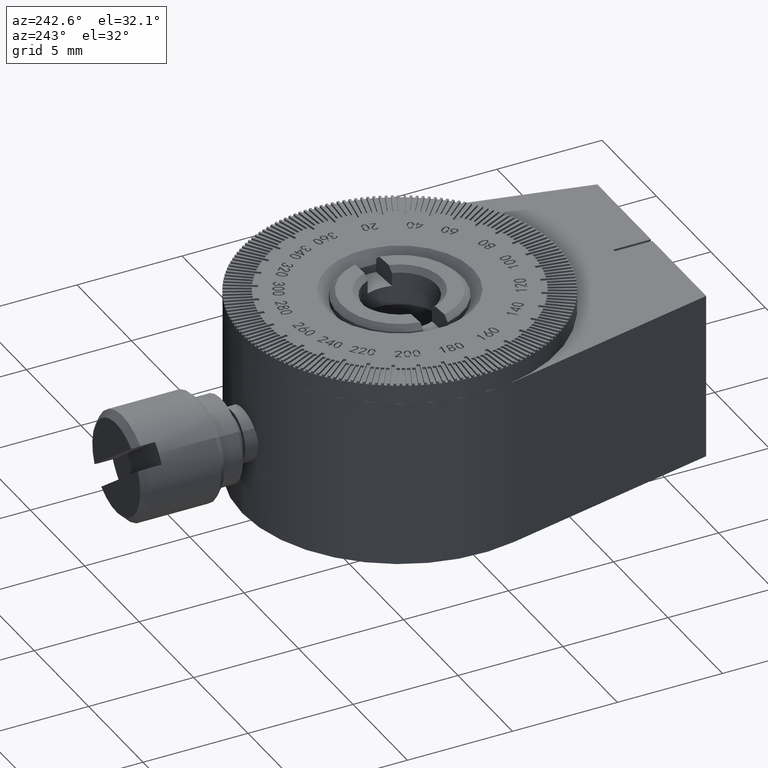
[diagram: clean part render]
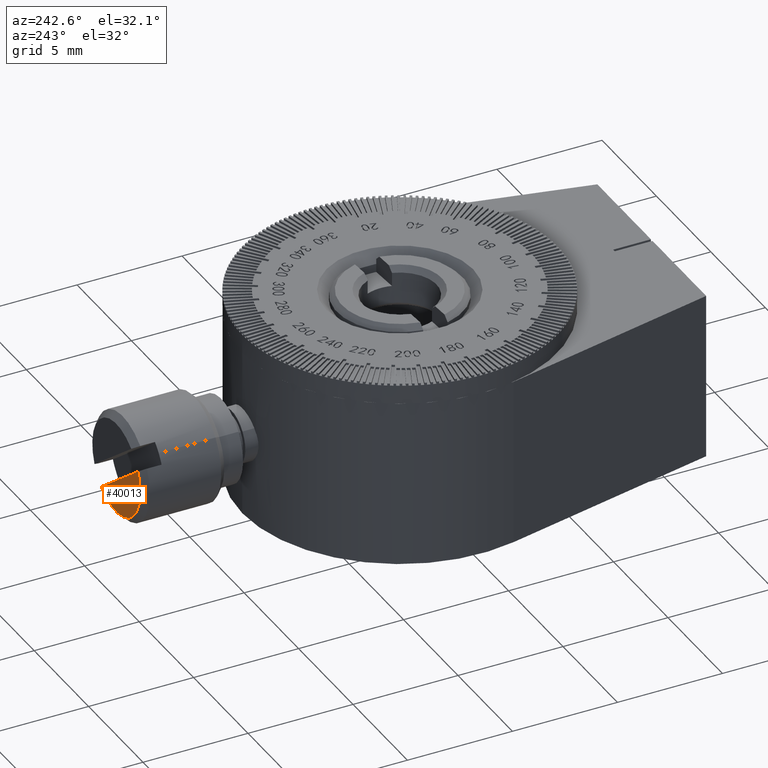
[diagram: same view with one face highlighted and labeled with its STEP entity id]
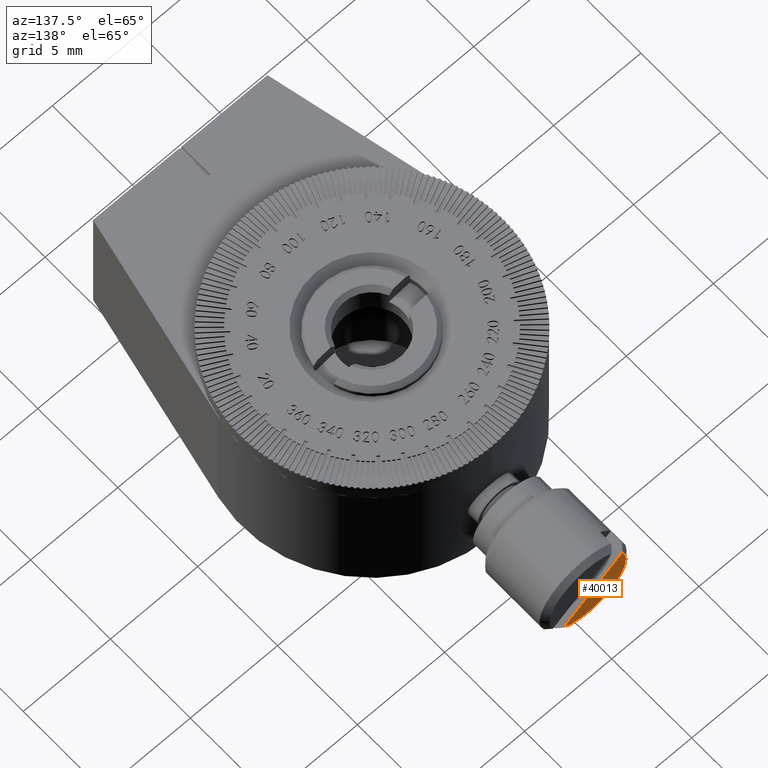
[diagram: same view with one face highlighted and labeled with its STEP entity id]
A machine part, auxiliary view. The second image highlights one B-rep face of the part: STEP entity #40013.
A second angle (auxiliary view) of the same face is appended — the face is thin or edge-on in the first view.
In plain terms, the highlighted planar face has unit normal (0, 1, 0).
Its self-contained STEP definition (entity closure, byte-faithful):
#1792 = CARTESIAN_POINT ( 'NONE',  ( 0.000000000000000000, 5.000000000000000000, 0.000000000000000000 ) ) ;
#2374 = CARTESIAN_POINT ( 'NONE',  ( 0.5000000000000000000, 5.000000000000000000, -2.142428528562853263 ) ) ;
#10458 = VECTOR ( 'NONE', #61107, 1000.000000000000000 ) ;
#10461 = FACE_OUTER_BOUND ( 'NONE', #55239, .T. ) ;
#12777 = CIRCLE ( 'NONE', #48634, 2.199999999999998845 ) ;
#19778 = LINE ( 'NONE', #41829, #10458 ) ;
#21750 = VERTEX_POINT ( 'NONE', #2374 ) ;
#26201 = EDGE_CURVE ( 'NONE', #43378, #21750, #12777, .T. ) ;
#30037 = CARTESIAN_POINT ( 'NONE',  ( 0.000000000000000000, 5.000000000000000000, 0.000000000000000000 ) ) ;
#30978 = EDGE_CURVE ( 'NONE', #43378, #21750, #19778, .T. ) ;
#32528 = AXIS2_PLACEMENT_3D ( 'NONE', #30037, #44769, #39948 ) ;
#34209 = PLANE ( 'NONE',  #32528 ) ;
#37807 = ORIENTED_EDGE ( 'NONE', *, *, #30978, .F. ) ;
#38311 = CARTESIAN_POINT ( 'NONE',  ( 0.5000000000000000000, 5.000000000000000000, 2.142428528562853263 ) ) ;
#39948 = DIRECTION ( 'NONE',  ( 0.000000000000000000, -0.000000000000000000, 1.000000000000000000 ) ) ;
#40013 = ADVANCED_FACE ( 'NONE', ( #10461 ), #34209, .T. ) ;
#41829 = CARTESIAN_POINT ( 'NONE',  ( 0.5000000000000000000, 5.000000000000000000, -2.500000000000000000 ) ) ;
#43378 = VERTEX_POINT ( 'NONE', #38311 ) ;
#44769 = DIRECTION ( 'NONE',  ( 0.000000000000000000, 1.000000000000000000, 0.000000000000000000 ) ) ;
#45112 = DIRECTION ( 'NONE',  ( 0.000000000000000000, 0.000000000000000000, 1.000000000000000000 ) ) ;
#48634 = AXIS2_PLACEMENT_3D ( 'NONE', #1792, #55377, #45112 ) ;
#51497 = ORIENTED_EDGE ( 'NONE', *, *, #26201, .T. ) ;
#55239 = EDGE_LOOP ( 'NONE', ( #37807, #51497 ) ) ;
#55377 = DIRECTION ( 'NONE',  ( 0.000000000000000000, 1.000000000000000000, 0.000000000000000000 ) ) ;
#61107 = DIRECTION ( 'NONE',  ( -0.000000000000000000, -0.000000000000000000, -1.000000000000000000 ) ) ;